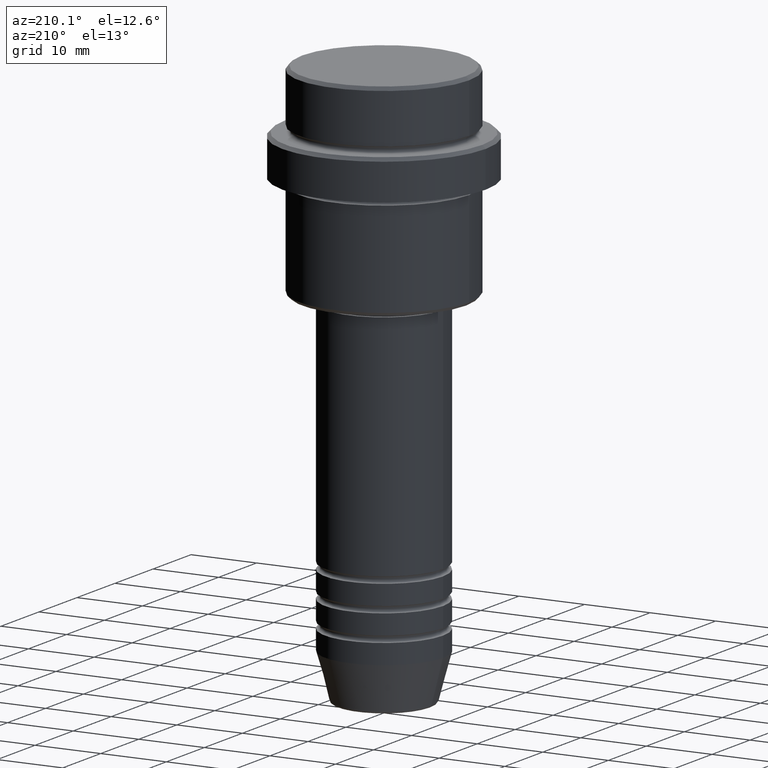
[diagram: clean part render]
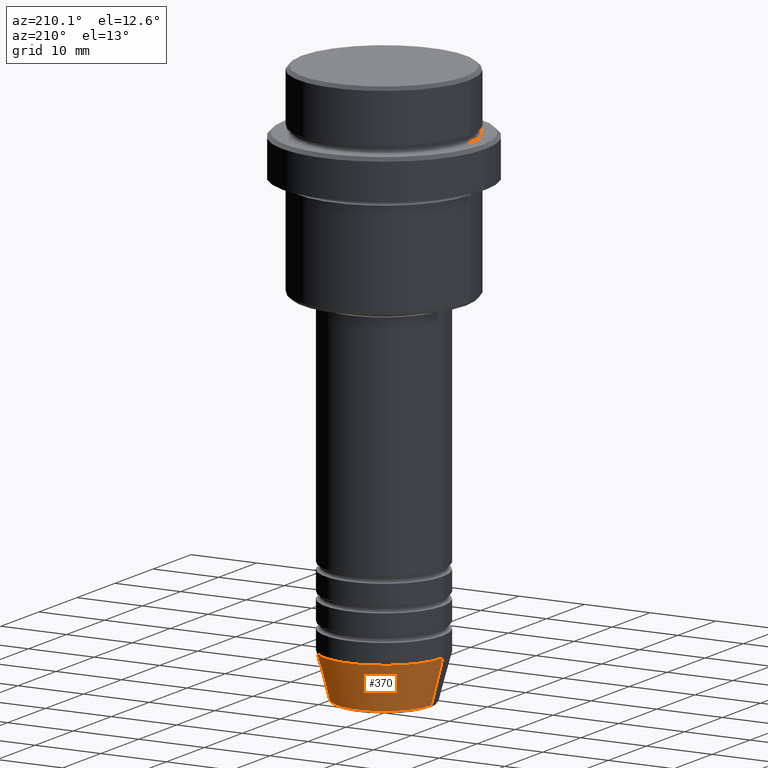
[diagram: same view with one face highlighted and labeled with its STEP entity id]
A machine part, auxiliary view. The second image highlights one B-rep face of the part: STEP entity #370.
In plain terms, the highlighted conical surface has half-angle 15 deg.
Its self-contained STEP definition (entity closure, byte-faithful):
#9 = ORIENTED_EDGE ( 'NONE', *, *, #1049, .T. ) ;
#141 = CARTESIAN_POINT ( 'NONE',  ( 9.000000000000000000, 0.000000000000000000, -79.00000000000000000 ) ) ;
#201 = DIRECTION ( 'NONE',  ( 0.2588190451025213501, 0.000000000000000000, 0.9659258262890680902 ) ) ;
#257 = VECTOR ( 'NONE', #609, 1000.000000000000000 ) ;
#285 = DIRECTION ( 'NONE',  ( -0.000000000000000000, -0.000000000000000000, 1.000000000000000000 ) ) ;
#293 = EDGE_CURVE ( 'NONE', #1324, #886, #1374, .T. ) ;
#299 = LINE ( 'NONE', #844, #257 ) ;
#305 = AXIS2_PLACEMENT_3D ( 'NONE', #615, #285, #611 ) ;
#309 = CARTESIAN_POINT ( 'NONE',  ( 0.000000000000000000, 0.000000000000000000, -85.62940952255124216 ) ) ;
#338 = ORIENTED_EDGE ( 'NONE', *, *, #793, .F. ) ;
#341 = VERTEX_POINT ( 'NONE', #833 ) ;
#370 = ADVANCED_FACE ( 'NONE', ( #923 ), #1082, .T. ) ;
#381 = CARTESIAN_POINT ( 'NONE',  ( 0.000000000000000000, 0.000000000000000000, -79.00000000000000000 ) ) ;
#450 = ORIENTED_EDGE ( 'NONE', *, *, #1231, .T. ) ;
#534 = AXIS2_PLACEMENT_3D ( 'NONE', #309, #1090, #650 ) ;
#609 = DIRECTION ( 'NONE',  ( -0.2588190451025213501, 3.169619151431772337E-17, 0.9659258262890680902 ) ) ;
#611 = DIRECTION ( 'NONE',  ( 1.000000000000000000, 0.000000000000000000, 0.000000000000000000 ) ) ;
#615 = CARTESIAN_POINT ( 'NONE',  ( 0.000000000000000000, 0.000000000000000000, -79.00000000000000000 ) ) ;
#632 = ORIENTED_EDGE ( 'NONE', *, *, #293, .F. ) ;
#650 = DIRECTION ( 'NONE',  ( 1.000000000000000000, 0.000000000000000000, 0.000000000000000000 ) ) ;
#651 = LINE ( 'NONE', #1400, #1323 ) ;
#793 = EDGE_CURVE ( 'NONE', #1215, #1324, #651, .T. ) ;
#833 = CARTESIAN_POINT ( 'NONE',  ( -7.223655072137193045, 9.934123627281767082E-16, -85.62940952255124216 ) ) ;
#839 = EDGE_LOOP ( 'NONE', ( #450, #9, #632, #338 ) ) ;
#844 = CARTESIAN_POINT ( 'NONE',  ( -9.000000000000000000, 1.102182119232617714E-15, -79.00000000000000000 ) ) ;
#886 = VERTEX_POINT ( 'NONE', #1169 ) ;
#894 = CIRCLE ( 'NONE', #534, 7.223655072137193045 ) ;
#923 = FACE_OUTER_BOUND ( 'NONE', #839, .T. ) ;
#981 = CARTESIAN_POINT ( 'NONE',  ( 7.223655072137193045, 0.000000000000000000, -85.62940952255124216 ) ) ;
#1049 = EDGE_CURVE ( 'NONE', #341, #886, #299, .T. ) ;
#1082 = CONICAL_SURFACE ( 'NONE', #1375, 9.000000000000000000, 0.2617993877991500740 ) ;
#1090 = DIRECTION ( 'NONE',  ( -0.000000000000000000, -0.000000000000000000, 1.000000000000000000 ) ) ;
#1153 = DIRECTION ( 'NONE',  ( 1.000000000000000000, 0.000000000000000000, 0.000000000000000000 ) ) ;
#1169 = CARTESIAN_POINT ( 'NONE',  ( -9.000000000000000000, 1.102182119232617714E-15, -79.00000000000000000 ) ) ;
#1215 = VERTEX_POINT ( 'NONE', #981 ) ;
#1231 = EDGE_CURVE ( 'NONE', #1215, #341, #894, .T. ) ;
#1323 = VECTOR ( 'NONE', #201, 1000.000000000000000 ) ;
#1324 = VERTEX_POINT ( 'NONE', #141 ) ;
#1355 = DIRECTION ( 'NONE',  ( -0.000000000000000000, -0.000000000000000000, 1.000000000000000000 ) ) ;
#1374 = CIRCLE ( 'NONE', #305, 9.000000000000000000 ) ;
#1375 = AXIS2_PLACEMENT_3D ( 'NONE', #381, #1355, #1153 ) ;
#1400 = CARTESIAN_POINT ( 'NONE',  ( 9.000000000000000000, 0.000000000000000000, -79.00000000000000000 ) ) ;